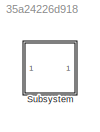
MODEL slx_35a24226d918
KIND model
CONFIG AbsTol = auto
CONFIG EnableMultiTasking = off
CONFIG FixedStep = auto
CONFIG MaxStep = auto
CONFIG MinStep = auto
CONFIG RelTol = 1e-3
CONFIG SampleTimeConstraint = Unconstrained
CONFIG SolverName = VariableStepAuto
CONFIG StartTime = 0.0
CONFIG StopTime = 10.0
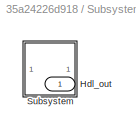
BLOCK [SubSystem] Subsystem
BLOCK [Outport] Subsystem/Hdl_out
  OutDataTypeStr = uint8
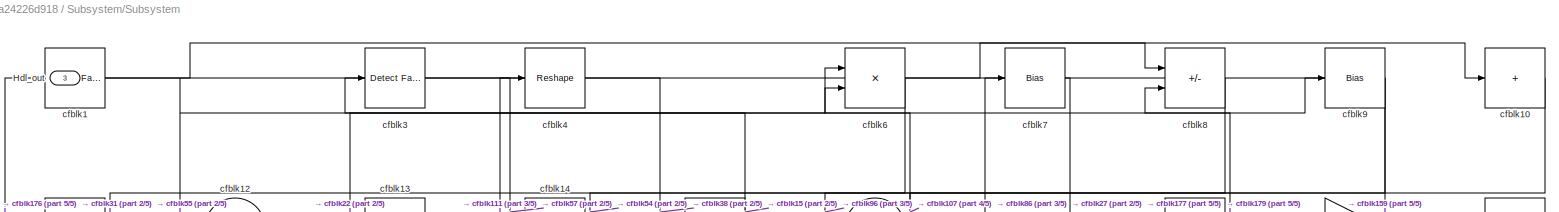
[diagram: Subsystem/Subsystem - part 1/5, full width, top band]
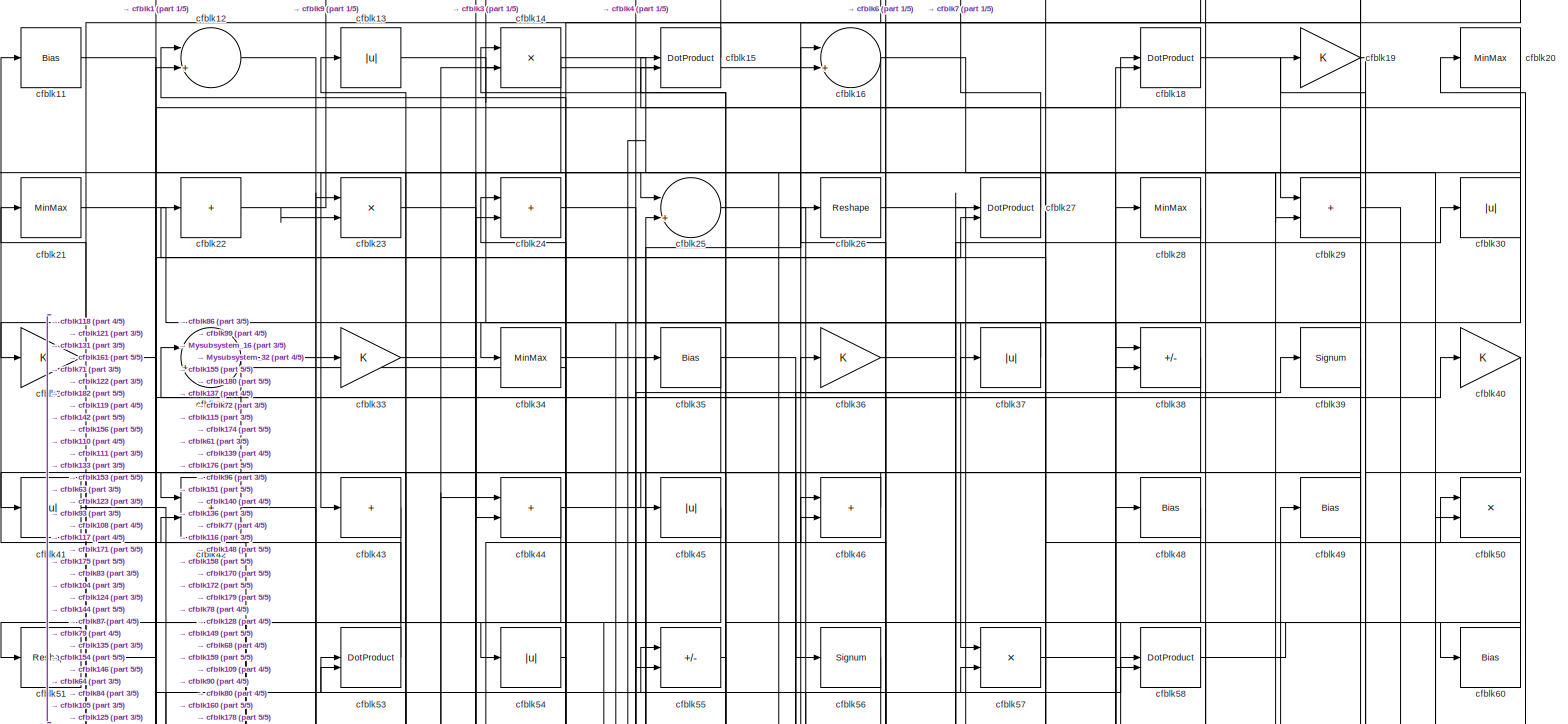
[diagram: Subsystem/Subsystem - part 2/5, full width, top band]
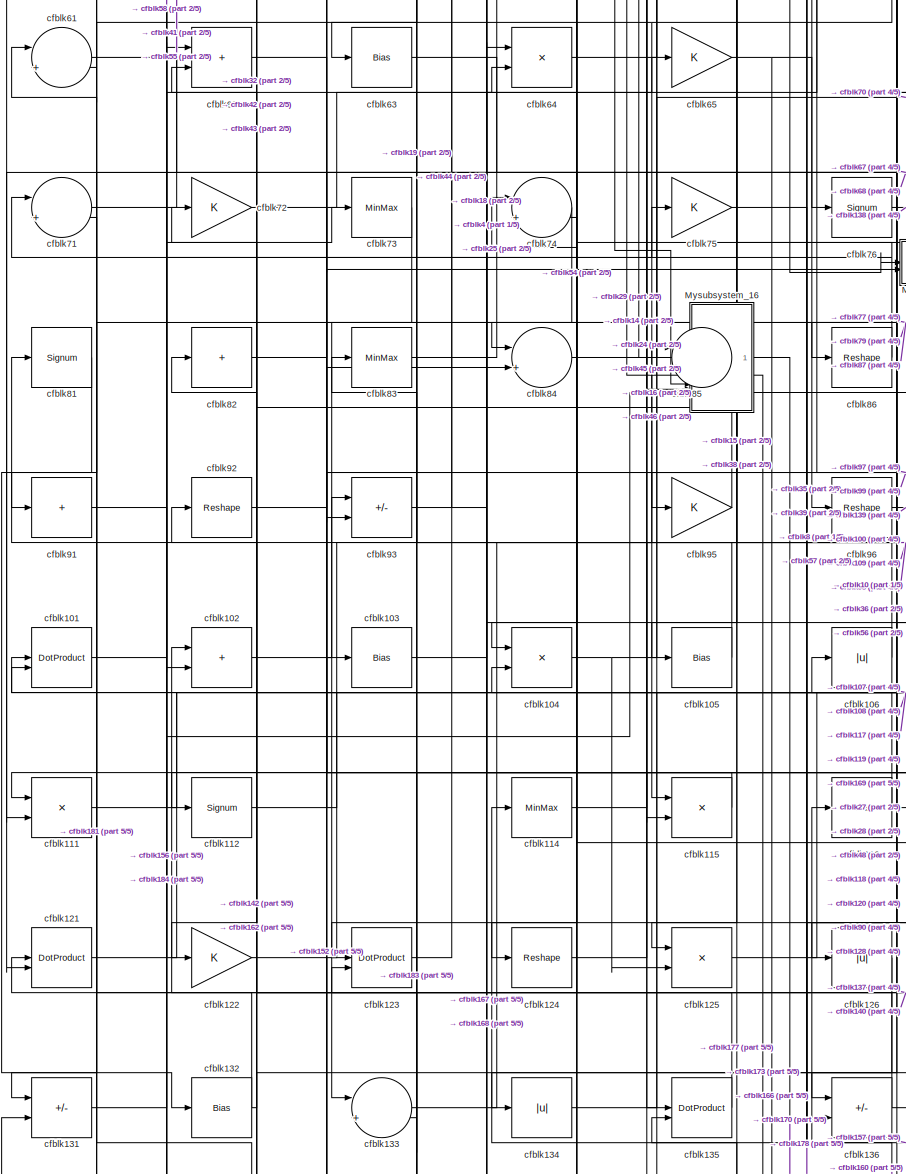
[diagram: Subsystem/Subsystem - part 3/5, middle left region]
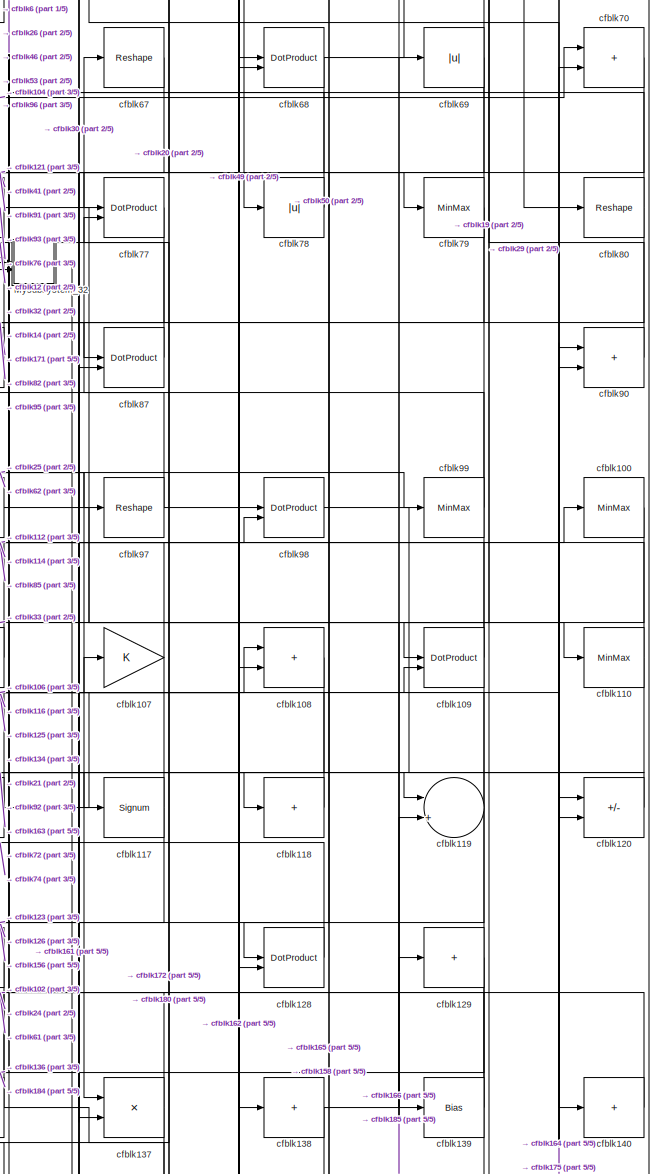
[diagram: Subsystem/Subsystem - part 4/5, middle right region]
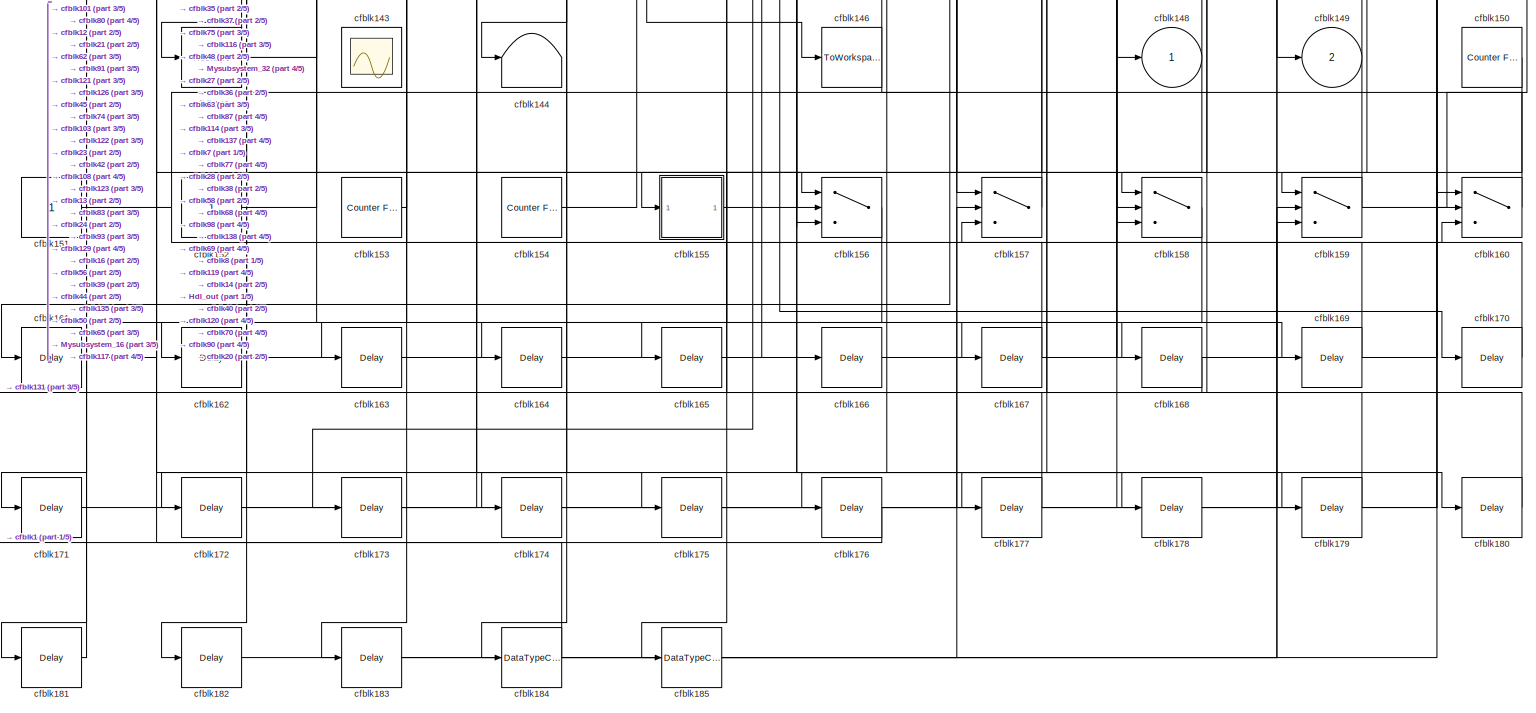
[diagram: Subsystem/Subsystem - part 5/5, full width, bottom band]
BLOCK [SubSystem] Subsystem/Subsystem
BLOCK [Outport] Subsystem/Subsystem/Hdl_out
  OutDataTypeStr = uint8
  Port = 3
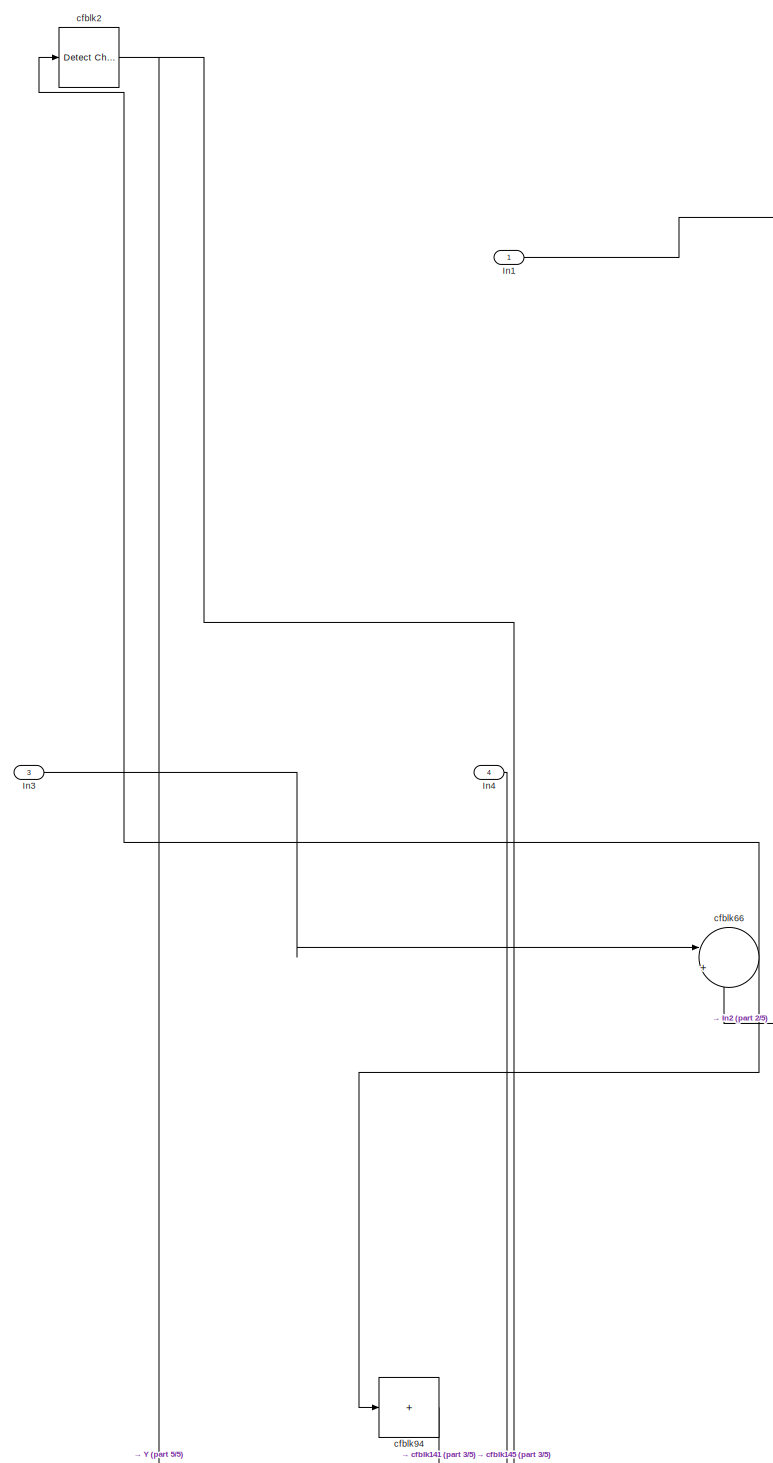
[diagram: Subsystem/Subsystem/Mysubsystem_16 - part 1/5, top center region]
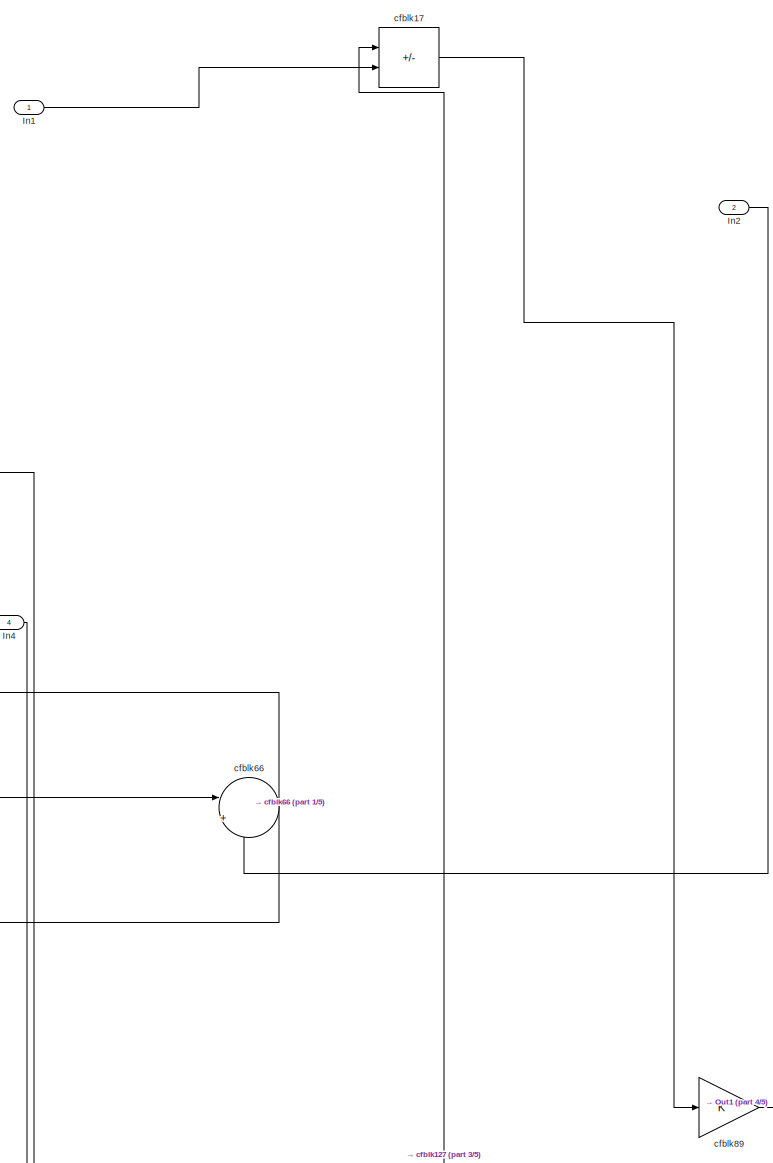
[diagram: Subsystem/Subsystem/Mysubsystem_16 - part 2/5, top center region]
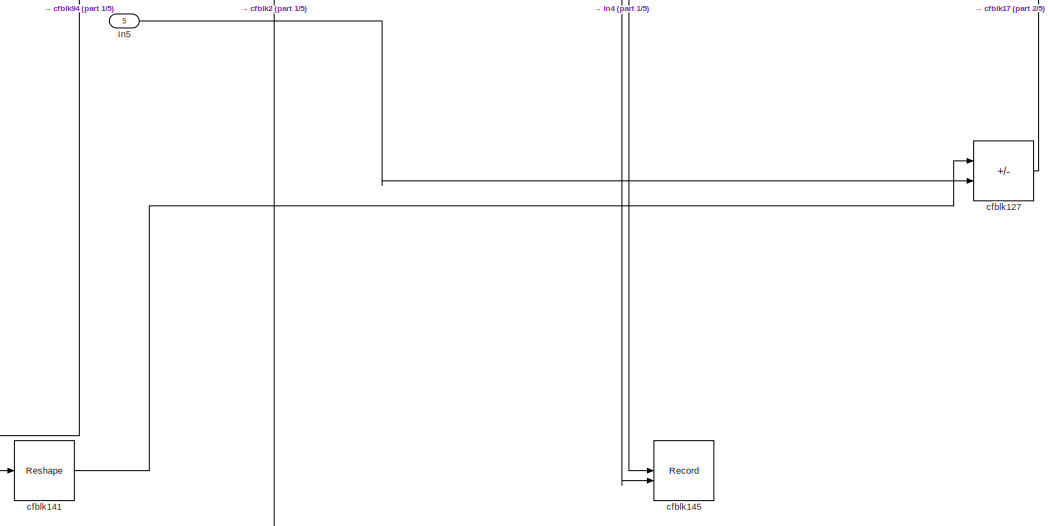
[diagram: Subsystem/Subsystem/Mysubsystem_16 - part 3/5, bottom center region]
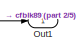
[diagram: Subsystem/Subsystem/Mysubsystem_16 - part 4/5, bottom right region]
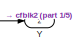
[diagram: Subsystem/Subsystem/Mysubsystem_16 - part 5/5, bottom left region]
BLOCK [SubSystem] Subsystem/Subsystem/Mysubsystem_16
  RTWFcnName = Mysubsystem_16
  RTWFcnNameOpts = User specified
  RTWFileNameOpts = Use function name
  RTWSystemCode = Reusable function
  TreatAsAtomicUnit = on
BLOCK [Inport] Subsystem/Subsystem/Mysubsystem_16/In1
BLOCK [Inport] Subsystem/Subsystem/Mysubsystem_16/In2
  Port = 2
BLOCK [Inport] Subsystem/Subsystem/Mysubsystem_16/In3
  Port = 3
BLOCK [Inport] Subsystem/Subsystem/Mysubsystem_16/In4
  Port = 4
BLOCK [Inport] Subsystem/Subsystem/Mysubsystem_16/In5
  Port = 5
BLOCK [Outport] Subsystem/Subsystem/Mysubsystem_16/Out1
BLOCK [Outport] Subsystem/Subsystem/Mysubsystem_16/Y
  Port = 2
BLOCK [Sum] Subsystem/Subsystem/Mysubsystem_16/cfblk127
  IconShape = rectangular
  Inputs = +-
BLOCK [Reshape] Subsystem/Subsystem/Mysubsystem_16/cfblk141
BLOCK [Record] Subsystem/Subsystem/Mysubsystem_16/cfblk145
  CompatibilityTag = XY
  FileSettingsInternal = {"entries":[{"content":{"excelSettings":{"content":{},"type":"Streamout.ExcelSettings"}},"type":"Streamout.FileSettingStorage","uuid":""}],"packageUris":["http:\/\/schema.mathworks.com\/mf0\/streamout_blocks\/R2020a"],"version":"1.0"}
  Layout = [1 1]
  SignalsInternal = {"entries":[{"content":{},"type":"RecordBlkView.InputSignals","uuid":""}],"packageUris":["http:\/\/schema.mathworks.com\/mf0\/streamout_blocks\/R2020a"],"version":"1.0"}
  VisualizationBindings = {"xyplotplugin":{"info":[{"series":[],"subplotID":1}]}}
  st = -1
BLOCK [Sum] Subsystem/Subsystem/Mysubsystem_16/cfblk17
  IconShape = rectangular
  Inputs = +-
BLOCK [Reference] Subsystem/Subsystem/Mysubsystem_16/cfblk2  REF=simulink/Logic and Bit
Operations/Detect
Change
  LibrarySourceBlock = hdlsllib/Logic and Bit\nOperations/Detect\nChange
  SourceBlock = simulink/Logic and Bit\nOperations/Detect\nChange
  SourceType = Detect Change
BLOCK [Sum] Subsystem/Subsystem/Mysubsystem_16/cfblk66
  Inputs = |++
BLOCK [Gain] Subsystem/Subsystem/Mysubsystem_16/cfblk89
BLOCK [Sum] Subsystem/Subsystem/Mysubsystem_16/cfblk94
  IconShape = rectangular
  Inputs = +
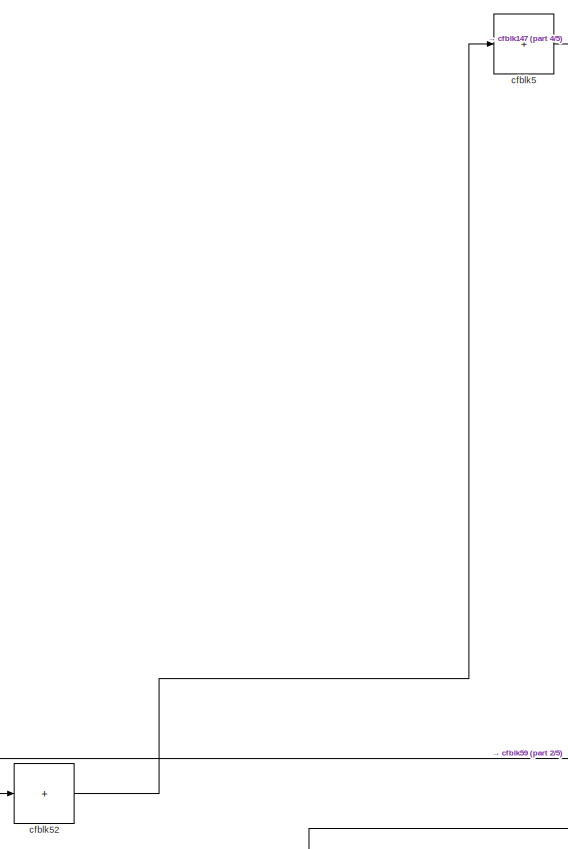
[diagram: Subsystem/Subsystem/Mysubsystem_32 - part 1/5, top left region]
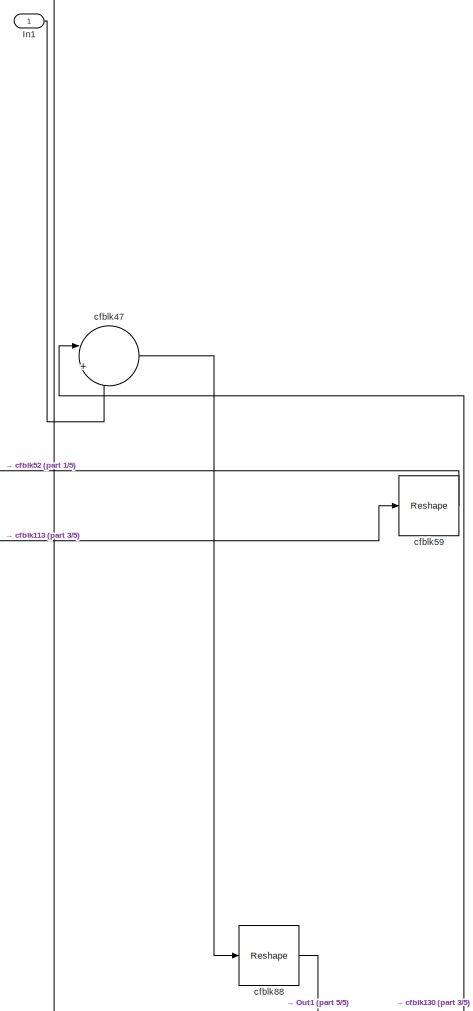
[diagram: Subsystem/Subsystem/Mysubsystem_32 - part 2/5, top right region]
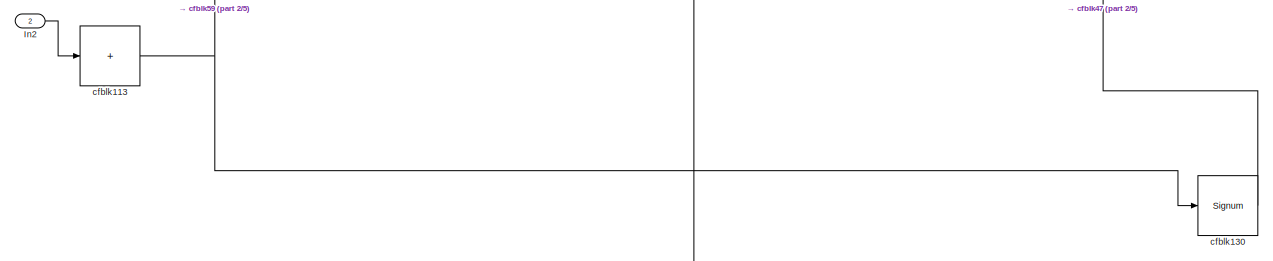
[diagram: Subsystem/Subsystem/Mysubsystem_32 - part 3/5, full width, bottom band]
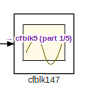
[diagram: Subsystem/Subsystem/Mysubsystem_32 - part 4/5, bottom center region]
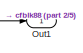
[diagram: Subsystem/Subsystem/Mysubsystem_32 - part 5/5, bottom left region]
BLOCK [SubSystem] Subsystem/Subsystem/Mysubsystem_32
  RTWFcnName = Mysubsystem_32
  RTWFcnNameOpts = User specified
  RTWFileNameOpts = Use function name
  RTWSystemCode = Reusable function
  TreatAsAtomicUnit = on
BLOCK [Inport] Subsystem/Subsystem/Mysubsystem_32/In1
BLOCK [Inport] Subsystem/Subsystem/Mysubsystem_32/In2
  Port = 2
BLOCK [Outport] Subsystem/Subsystem/Mysubsystem_32/Out1
BLOCK [Sum] Subsystem/Subsystem/Mysubsystem_32/cfblk113
  IconShape = rectangular
  Inputs = +
BLOCK [Signum] Subsystem/Subsystem/Mysubsystem_32/cfblk130
BLOCK [Scope] Subsystem/Subsystem/Mysubsystem_32/cfblk147
  Floating = off
  NumInputPorts = 1
  ScopeSpecificationString = Simulink.scopes.TimeScopeBlockCfg('CurrentConfiguration', extmgr.ConfigurationSet(extmgr.Configuration('Core','General UI',true),extmgr.Configuration('Core','Source UI',true),extmgr.Configuration('Sources','WiredSimulink',true,'DataLoggingVariableName','ScopeData2','DataLoggingSaveFormat','Array','DataLoggingLimitDataPoints',true,'DataLoggingDecimation','1'),extmgr.Configuration('Visuals','Time Do...<+868ch>
BLOCK [Sum] Subsystem/Subsystem/Mysubsystem_32/cfblk47
  Inputs = |++
BLOCK [Sum] Subsystem/Subsystem/Mysubsystem_32/cfblk5
  IconShape = rectangular
  Inputs = +
BLOCK [Sum] Subsystem/Subsystem/Mysubsystem_32/cfblk52
  IconShape = rectangular
  Inputs = +
BLOCK [Reshape] Subsystem/Subsystem/Mysubsystem_32/cfblk59
BLOCK [Reshape] Subsystem/Subsystem/Mysubsystem_32/cfblk88
BLOCK [Reference] Subsystem/Subsystem/cfblk1  REF=hdlsllib/Logic and Bit
Operations/Detect Fall
Negative
  SourceBlock = hdlsllib/Logic and Bit\nOperations/Detect Fall\nNegative
  SourceType = Detect Fall Negative
BLOCK [Sum] Subsystem/Subsystem/cfblk10
  IconShape = rectangular
  Inputs = +
  OutDataTypeStr = uint8
BLOCK [MinMax] Subsystem/Subsystem/cfblk100
  OutDataTypeStr = uint8
BLOCK [DotProduct] Subsystem/Subsystem/cfblk101
  OutDataTypeStr = uint8
BLOCK [Sum] Subsystem/Subsystem/cfblk102
  IconShape = rectangular
  OutDataTypeStr = uint8
BLOCK [Bias] Subsystem/Subsystem/cfblk103
  Bias = 0.0
  SaturateOnIntegerOverflow = off
BLOCK [Product] Subsystem/Subsystem/cfblk104
  Inputs = */
  OutDataTypeStr = uint8
  RndMeth = Zero
  SaturateOnIntegerOverflow = on
BLOCK [Bias] Subsystem/Subsystem/cfblk105
  Bias = 0.0
  SaturateOnIntegerOverflow = off
BLOCK [Abs] Subsystem/Subsystem/cfblk106
  OutDataTypeStr = uint8
  SaturateOnIntegerOverflow = off
BLOCK [Gain] Subsystem/Subsystem/cfblk107
  OutDataTypeStr = uint8
BLOCK [Sum] Subsystem/Subsystem/cfblk108
  IconShape = rectangular
  OutDataTypeStr = uint8
BLOCK [DotProduct] Subsystem/Subsystem/cfblk109
  OutDataTypeStr = uint8
BLOCK [Bias] Subsystem/Subsystem/cfblk11
  Bias = 0.0
  SaturateOnIntegerOverflow = off
BLOCK [MinMax] Subsystem/Subsystem/cfblk110
  OutDataTypeStr = uint8
BLOCK [Product] Subsystem/Subsystem/cfblk111
  Inputs = */
  OutDataTypeStr = uint8
  RndMeth = Zero
  SaturateOnIntegerOverflow = on
BLOCK [Signum] Subsystem/Subsystem/cfblk112
BLOCK [MinMax] Subsystem/Subsystem/cfblk114
  OutDataTypeStr = uint8
BLOCK [Product] Subsystem/Subsystem/cfblk115
  Inputs = */
  OutDataTypeStr = uint8
  RndMeth = Zero
  SaturateOnIntegerOverflow = on
BLOCK [Bias] Subsystem/Subsystem/cfblk116
  Bias = 0.0
  SaturateOnIntegerOverflow = off
BLOCK [Signum] Subsystem/Subsystem/cfblk117
BLOCK [Sum] Subsystem/Subsystem/cfblk118
  IconShape = rectangular
  Inputs = +
  OutDataTypeStr = uint8
BLOCK [Sum] Subsystem/Subsystem/cfblk119
  Inputs = |++
  OutDataTypeStr = uint8
BLOCK [Sum] Subsystem/Subsystem/cfblk12
  Inputs = |++
  OutDataTypeStr = uint8
BLOCK [Sum] Subsystem/Subsystem/cfblk120
  IconShape = rectangular
  Inputs = +-
  OutDataTypeStr = uint8
BLOCK [DotProduct] Subsystem/Subsystem/cfblk121
  OutDataTypeStr = uint8
BLOCK [Gain] Subsystem/Subsystem/cfblk122
  OutDataTypeStr = uint8
BLOCK [DotProduct] Subsystem/Subsystem/cfblk123
  OutDataTypeStr = uint8
BLOCK [Reshape] Subsystem/Subsystem/cfblk124
BLOCK [Product] Subsystem/Subsystem/cfblk125
  Inputs = */
  OutDataTypeStr = uint8
  RndMeth = Zero
  SaturateOnIntegerOverflow = on
BLOCK [Abs] Subsystem/Subsystem/cfblk126
  OutDataTypeStr = uint8
  SaturateOnIntegerOverflow = off
BLOCK [DotProduct] Subsystem/Subsystem/cfblk128
  OutDataTypeStr = uint8
BLOCK [Sum] Subsystem/Subsystem/cfblk129
  IconShape = rectangular
  Inputs = +
  OutDataTypeStr = uint8
BLOCK [Abs] Subsystem/Subsystem/cfblk13
  OutDataTypeStr = uint8
  SaturateOnIntegerOverflow = off
BLOCK [Sum] Subsystem/Subsystem/cfblk131
  IconShape = rectangular
  Inputs = +-
  OutDataTypeStr = uint8
BLOCK [Bias] Subsystem/Subsystem/cfblk132
  Bias = 0.0
  SaturateOnIntegerOverflow = off
BLOCK [Sum] Subsystem/Subsystem/cfblk133
  Inputs = |++
  OutDataTypeStr = uint8
BLOCK [Abs] Subsystem/Subsystem/cfblk134
  OutDataTypeStr = uint8
  SaturateOnIntegerOverflow = off
BLOCK [DotProduct] Subsystem/Subsystem/cfblk135
  OutDataTypeStr = uint8
BLOCK [Sum] Subsystem/Subsystem/cfblk136
  IconShape = rectangular
  Inputs = +-
  OutDataTypeStr = uint8
BLOCK [Product] Subsystem/Subsystem/cfblk137
  Inputs = */
  OutDataTypeStr = uint8
  RndMeth = Zero
  SaturateOnIntegerOverflow = on
BLOCK [Sum] Subsystem/Subsystem/cfblk138
  IconShape = rectangular
  Inputs = +
  OutDataTypeStr = uint8
BLOCK [Bias] Subsystem/Subsystem/cfblk139
  Bias = 0.0
  SaturateOnIntegerOverflow = off
BLOCK [Product] Subsystem/Subsystem/cfblk14
  Inputs = */
  OutDataTypeStr = uint8
  RndMeth = Zero
  SaturateOnIntegerOverflow = on
BLOCK [Sum] Subsystem/Subsystem/cfblk140
  IconShape = rectangular
  Inputs = +
  OutDataTypeStr = uint8
BLOCK [Reshape] Subsystem/Subsystem/cfblk142
BLOCK [Scope] Subsystem/Subsystem/cfblk143
  Floating = on
  NumInputPorts = 1
  ScopeSpecificationString = Simulink.scopes.TimeScopeBlockCfg('CurrentConfiguration', extmgr.ConfigurationSet(extmgr.Configuration('Core','General UI',true,'FigureColor',[0.156862745098039 0.156862745098039 0.156862745098039]),extmgr.Configuration('Core','Source UI',true),extmgr.Configuration('Sources','WiredSimulink',true,'DataLoggingVariableName','ScopeData1','DataLoggingSaveFormat','StructureWithTime','DataLoggingLimitDat...<+2713ch>
BLOCK [Terminator] Subsystem/Subsystem/cfblk144
BLOCK [ToWorkspace] Subsystem/Subsystem/cfblk146
  MaxDataPoints = inf
  SampleTime = -1
  SaveFormat = Timeseries
  VariableName = simout
BLOCK [Outport] Subsystem/Subsystem/cfblk148
  OutDataTypeStr = uint8
  VectorParamsAs1DForOutWhenUnconnected = off
BLOCK [Outport] Subsystem/Subsystem/cfblk149
  OutDataTypeStr = uint8
  Port = 2
  VectorParamsAs1DForOutWhenUnconnected = off
BLOCK [DotProduct] Subsystem/Subsystem/cfblk15
  OutDataTypeStr = uint8
BLOCK [Reference] Subsystem/Subsystem/cfblk150  REF=hdlsllib/Sources/Counter
Free-Running
  SourceBlock = hdlsllib/Sources/Counter\nFree-Running
  SourceType = Counter Free-Running
BLOCK [Constant] Subsystem/Subsystem/cfblk151
  OutDataTypeStr = uint8
  SampleTime = -1
BLOCK [Constant] Subsystem/Subsystem/cfblk152
  OutDataTypeStr = uint8
  SampleTime = -1
BLOCK [Reference] Subsystem/Subsystem/cfblk153  REF=hdlsllib/Sources/Counter
Free-Running
  SourceBlock = hdlsllib/Sources/Counter\nFree-Running
  SourceType = Counter Free-Running
BLOCK [Reference] Subsystem/Subsystem/cfblk154  REF=hdlsllib/Sources/Counter
Free-Running
  SourceBlock = hdlsllib/Sources/Counter\nFree-Running
  SourceType = Counter Free-Running
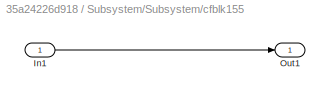
BLOCK [SubSystem] Subsystem/Subsystem/cfblk155
  LibrarySourceBlock = hdlsllib/Ports &\nSubsystems/Subsystem
BLOCK [Inport] Subsystem/Subsystem/cfblk155/In1
BLOCK [Outport] Subsystem/Subsystem/cfblk155/Out1
BLOCK [Switch] Subsystem/Subsystem/cfblk156
  InputSameDT = off
  OutDataTypeStr = uint8
  SaturateOnIntegerOverflow = off
BLOCK [Switch] Subsystem/Subsystem/cfblk157
  InputSameDT = off
  OutDataTypeStr = uint8
  SaturateOnIntegerOverflow = off
BLOCK [Switch] Subsystem/Subsystem/cfblk158
  InputSameDT = off
  OutDataTypeStr = uint8
  SaturateOnIntegerOverflow = off
BLOCK [Switch] Subsystem/Subsystem/cfblk159
  InputSameDT = off
  OutDataTypeStr = uint8
  SaturateOnIntegerOverflow = off
BLOCK [Sum] Subsystem/Subsystem/cfblk16
  Inputs = |++
  OutDataTypeStr = uint8
BLOCK [Switch] Subsystem/Subsystem/cfblk160
  InputSameDT = off
  OutDataTypeStr = uint8
  SaturateOnIntegerOverflow = off
BLOCK [Delay] Subsystem/Subsystem/cfblk161
  InputPortMap = u0
  SampleTime = 1
BLOCK [Delay] Subsystem/Subsystem/cfblk162
  InputPortMap = u0
  SampleTime = 1
BLOCK [Delay] Subsystem/Subsystem/cfblk163
  InputPortMap = u0
  SampleTime = 1
BLOCK [Delay] Subsystem/Subsystem/cfblk164
  InputPortMap = u0
  SampleTime = 1
BLOCK [Delay] Subsystem/Subsystem/cfblk165
  InputPortMap = u0
  SampleTime = 1
BLOCK [Delay] Subsystem/Subsystem/cfblk166
  InputPortMap = u0
  SampleTime = 1
BLOCK [Delay] Subsystem/Subsystem/cfblk167
  InputPortMap = u0
  SampleTime = 1
BLOCK [Delay] Subsystem/Subsystem/cfblk168
  InputPortMap = u0
  SampleTime = 1
BLOCK [Delay] Subsystem/Subsystem/cfblk169
  InputPortMap = u0
  SampleTime = 1
BLOCK [Delay] Subsystem/Subsystem/cfblk170
  InputPortMap = u0
  SampleTime = 1
BLOCK [Delay] Subsystem/Subsystem/cfblk171
  InputPortMap = u0
  SampleTime = 1
BLOCK [Delay] Subsystem/Subsystem/cfblk172
  InputPortMap = u0
  SampleTime = 1
BLOCK [Delay] Subsystem/Subsystem/cfblk173
  InputPortMap = u0
  SampleTime = 1
BLOCK [Delay] Subsystem/Subsystem/cfblk174
  InputPortMap = u0
  SampleTime = 1
BLOCK [Delay] Subsystem/Subsystem/cfblk175
  InputPortMap = u0
  SampleTime = 1
BLOCK [Delay] Subsystem/Subsystem/cfblk176
  InputPortMap = u0
  SampleTime = 1
BLOCK [Delay] Subsystem/Subsystem/cfblk177
  InputPortMap = u0
  SampleTime = 1
BLOCK [Delay] Subsystem/Subsystem/cfblk178
  InputPortMap = u0
  SampleTime = 1
BLOCK [Delay] Subsystem/Subsystem/cfblk179
  InputPortMap = u0
  SampleTime = 1
BLOCK [DotProduct] Subsystem/Subsystem/cfblk18
  OutDataTypeStr = uint8
BLOCK [Delay] Subsystem/Subsystem/cfblk180
  InputPortMap = u0
  SampleTime = 1
BLOCK [Delay] Subsystem/Subsystem/cfblk181
  InputPortMap = u0
  SampleTime = 1
BLOCK [Delay] Subsystem/Subsystem/cfblk182
  InputPortMap = u0
  SampleTime = 1
BLOCK [Delay] Subsystem/Subsystem/cfblk183
  InputPortMap = u0
  SampleTime = 1
BLOCK [DataTypeConversion] Subsystem/Subsystem/cfblk184
  OutDataTypeStr = uint8
  RndMeth = Floor
  SaturateOnIntegerOverflow = off
BLOCK [DataTypeConversion] Subsystem/Subsystem/cfblk185
  OutDataTypeStr = uint8
  RndMeth = Floor
  SaturateOnIntegerOverflow = off
BLOCK [Gain] Subsystem/Subsystem/cfblk19
  OutDataTypeStr = uint8
BLOCK [MinMax] Subsystem/Subsystem/cfblk20
  OutDataTypeStr = uint8
BLOCK [MinMax] Subsystem/Subsystem/cfblk21
  OutDataTypeStr = uint8
BLOCK [Sum] Subsystem/Subsystem/cfblk22
  IconShape = rectangular
  Inputs = +
  OutDataTypeStr = uint8
BLOCK [Product] Subsystem/Subsystem/cfblk23
  Inputs = */
  OutDataTypeStr = uint8
  RndMeth = Zero
  SaturateOnIntegerOverflow = on
BLOCK [Sum] Subsystem/Subsystem/cfblk24
  IconShape = rectangular
  OutDataTypeStr = uint8
BLOCK [Sum] Subsystem/Subsystem/cfblk25
  Inputs = |++
  OutDataTypeStr = uint8
BLOCK [Reshape] Subsystem/Subsystem/cfblk26
BLOCK [DotProduct] Subsystem/Subsystem/cfblk27
  OutDataTypeStr = uint8
BLOCK [MinMax] Subsystem/Subsystem/cfblk28
  OutDataTypeStr = uint8
BLOCK [Sum] Subsystem/Subsystem/cfblk29
  IconShape = rectangular
  OutDataTypeStr = uint8
BLOCK [Reference] Subsystem/Subsystem/cfblk3  REF=hdlsllib/Logic and Bit
Operations/Detect Fall
Nonpositive
  SourceBlock = hdlsllib/Logic and Bit\nOperations/Detect Fall\nNonpositive
  SourceType = Detect Fall Nonpositive
BLOCK [Abs] Subsystem/Subsystem/cfblk30
  OutDataTypeStr = uint8
  SaturateOnIntegerOverflow = off
BLOCK [Gain] Subsystem/Subsystem/cfblk31
  OutDataTypeStr = uint8
BLOCK [Sum] Subsystem/Subsystem/cfblk32
  Inputs = |++
  OutDataTypeStr = uint8
BLOCK [Gain] Subsystem/Subsystem/cfblk33
  OutDataTypeStr = uint8
BLOCK [MinMax] Subsystem/Subsystem/cfblk34
  OutDataTypeStr = uint8
BLOCK [Bias] Subsystem/Subsystem/cfblk35
  Bias = 0.0
  SaturateOnIntegerOverflow = off
BLOCK [Gain] Subsystem/Subsystem/cfblk36
  OutDataTypeStr = uint8
BLOCK [Abs] Subsystem/Subsystem/cfblk37
  OutDataTypeStr = uint8
  SaturateOnIntegerOverflow = off
BLOCK [Sum] Subsystem/Subsystem/cfblk38
  IconShape = rectangular
  Inputs = +-
  OutDataTypeStr = uint8
BLOCK [Signum] Subsystem/Subsystem/cfblk39
BLOCK [Reshape] Subsystem/Subsystem/cfblk4
BLOCK [Gain] Subsystem/Subsystem/cfblk40
  OutDataTypeStr = uint8
BLOCK [Abs] Subsystem/Subsystem/cfblk41
  OutDataTypeStr = uint8
  SaturateOnIntegerOverflow = off
BLOCK [Sum] Subsystem/Subsystem/cfblk42
  IconShape = rectangular
  OutDataTypeStr = uint8
BLOCK [Sum] Subsystem/Subsystem/cfblk43
  IconShape = rectangular
  Inputs = +
  OutDataTypeStr = uint8
BLOCK [Sum] Subsystem/Subsystem/cfblk44
  IconShape = rectangular
  OutDataTypeStr = uint8
BLOCK [Abs] Subsystem/Subsystem/cfblk45
  OutDataTypeStr = uint8
  SaturateOnIntegerOverflow = off
BLOCK [Sum] Subsystem/Subsystem/cfblk46
  IconShape = rectangular
  OutDataTypeStr = uint8
BLOCK [Bias] Subsystem/Subsystem/cfblk48
  Bias = 0.0
  SaturateOnIntegerOverflow = off
BLOCK [Bias] Subsystem/Subsystem/cfblk49
  Bias = 0.0
  SaturateOnIntegerOverflow = off
BLOCK [Product] Subsystem/Subsystem/cfblk50
  Inputs = */
  OutDataTypeStr = uint8
  RndMeth = Zero
  SaturateOnIntegerOverflow = on
BLOCK [Reshape] Subsystem/Subsystem/cfblk51
BLOCK [DotProduct] Subsystem/Subsystem/cfblk53
  OutDataTypeStr = uint8
BLOCK [Abs] Subsystem/Subsystem/cfblk54
  OutDataTypeStr = uint8
  SaturateOnIntegerOverflow = off
BLOCK [Sum] Subsystem/Subsystem/cfblk55
  IconShape = rectangular
  Inputs = +-
  OutDataTypeStr = uint8
BLOCK [Signum] Subsystem/Subsystem/cfblk56
BLOCK [Product] Subsystem/Subsystem/cfblk57
  Inputs = */
  OutDataTypeStr = uint8
  RndMeth = Zero
  SaturateOnIntegerOverflow = on
BLOCK [DotProduct] Subsystem/Subsystem/cfblk58
  OutDataTypeStr = uint8
BLOCK [Product] Subsystem/Subsystem/cfblk6
  Inputs = */
  OutDataTypeStr = uint8
  RndMeth = Zero
  SaturateOnIntegerOverflow = on
BLOCK [Bias] Subsystem/Subsystem/cfblk60
  Bias = 0.0
  SaturateOnIntegerOverflow = off
BLOCK [Sum] Subsystem/Subsystem/cfblk61
  Inputs = |++
  OutDataTypeStr = uint8
BLOCK [Sum] Subsystem/Subsystem/cfblk62
  IconShape = rectangular
  OutDataTypeStr = uint8
BLOCK [Bias] Subsystem/Subsystem/cfblk63
  Bias = 0.0
  SaturateOnIntegerOverflow = off
BLOCK [Product] Subsystem/Subsystem/cfblk64
  Inputs = */
  OutDataTypeStr = uint8
  RndMeth = Zero
  SaturateOnIntegerOverflow = on
BLOCK [Gain] Subsystem/Subsystem/cfblk65
  OutDataTypeStr = uint8
BLOCK [Reshape] Subsystem/Subsystem/cfblk67
BLOCK [DotProduct] Subsystem/Subsystem/cfblk68
  OutDataTypeStr = uint8
BLOCK [Abs] Subsystem/Subsystem/cfblk69
  OutDataTypeStr = uint8
  SaturateOnIntegerOverflow = off
BLOCK [Bias] Subsystem/Subsystem/cfblk7
  Bias = 0.0
  SaturateOnIntegerOverflow = off
BLOCK [Sum] Subsystem/Subsystem/cfblk70
  IconShape = rectangular
  OutDataTypeStr = uint8
BLOCK [Sum] Subsystem/Subsystem/cfblk71
  Inputs = |++
  OutDataTypeStr = uint8
BLOCK [Gain] Subsystem/Subsystem/cfblk72
  OutDataTypeStr = uint8
BLOCK [MinMax] Subsystem/Subsystem/cfblk73
  OutDataTypeStr = uint8
BLOCK [Sum] Subsystem/Subsystem/cfblk74
  Inputs = |++
  OutDataTypeStr = uint8
BLOCK [Gain] Subsystem/Subsystem/cfblk75
  OutDataTypeStr = uint8
BLOCK [Signum] Subsystem/Subsystem/cfblk76
BLOCK [DotProduct] Subsystem/Subsystem/cfblk77
  OutDataTypeStr = uint8
BLOCK [Abs] Subsystem/Subsystem/cfblk78
  OutDataTypeStr = uint8
  SaturateOnIntegerOverflow = off
BLOCK [MinMax] Subsystem/Subsystem/cfblk79
  OutDataTypeStr = uint8
BLOCK [Sum] Subsystem/Subsystem/cfblk8
  IconShape = rectangular
  Inputs = +-
  OutDataTypeStr = uint8
BLOCK [Reshape] Subsystem/Subsystem/cfblk80
BLOCK [Signum] Subsystem/Subsystem/cfblk81
BLOCK [Sum] Subsystem/Subsystem/cfblk82
  IconShape = rectangular
  Inputs = +
  OutDataTypeStr = uint8
BLOCK [MinMax] Subsystem/Subsystem/cfblk83
  OutDataTypeStr = uint8
BLOCK [Sum] Subsystem/Subsystem/cfblk84
  Inputs = |++
  OutDataTypeStr = uint8
BLOCK [Sum] Subsystem/Subsystem/cfblk85
  Inputs = |++
  OutDataTypeStr = uint8
BLOCK [Reshape] Subsystem/Subsystem/cfblk86
BLOCK [DotProduct] Subsystem/Subsystem/cfblk87
  OutDataTypeStr = uint8
BLOCK [Bias] Subsystem/Subsystem/cfblk9
  Bias = 0.0
  SaturateOnIntegerOverflow = off
BLOCK [Sum] Subsystem/Subsystem/cfblk90
  IconShape = rectangular
  OutDataTypeStr = uint8
BLOCK [Sum] Subsystem/Subsystem/cfblk91
  IconShape = rectangular
  Inputs = +
  OutDataTypeStr = uint8
BLOCK [Reshape] Subsystem/Subsystem/cfblk92
BLOCK [Sum] Subsystem/Subsystem/cfblk93
  IconShape = rectangular
  Inputs = +-
  OutDataTypeStr = uint8
BLOCK [Gain] Subsystem/Subsystem/cfblk95
  OutDataTypeStr = uint8
BLOCK [Reshape] Subsystem/Subsystem/cfblk96
BLOCK [Reshape] Subsystem/Subsystem/cfblk97
BLOCK [DotProduct] Subsystem/Subsystem/cfblk98
  OutDataTypeStr = uint8
BLOCK [MinMax] Subsystem/Subsystem/cfblk99
  OutDataTypeStr = uint8
LINE Subsystem/Subsystem/Mysubsystem_16/In1:1 -> Subsystem/Subsystem/Mysubsystem_16/cfblk17:2
LINE Subsystem/Subsystem/Mysubsystem_16/In2:1 -> Subsystem/Subsystem/Mysubsystem_16/cfblk66:2
LINE Subsystem/Subsystem/Mysubsystem_16/In3:1 -> Subsystem/Subsystem/Mysubsystem_16/cfblk66:1
LINE Subsystem/Subsystem/Mysubsystem_16/In4:1 -> Subsystem/Subsystem/Mysubsystem_16/cfblk145:2
LINE Subsystem/Subsystem/Mysubsystem_16/In5:1 -> Subsystem/Subsystem/Mysubsystem_16/cfblk127:2
LINE Subsystem/Subsystem/Mysubsystem_16/cfblk127:1 -> Subsystem/Subsystem/Mysubsystem_16/cfblk17:1
LINE Subsystem/Subsystem/Mysubsystem_16/cfblk141:1 -> Subsystem/Subsystem/Mysubsystem_16/cfblk127:1
LINE Subsystem/Subsystem/Mysubsystem_16/cfblk17:1 -> Subsystem/Subsystem/Mysubsystem_16/cfblk89:1
NET Subsystem/Subsystem/Mysubsystem_16/cfblk2:1 -> Subsystem/Subsystem/Mysubsystem_16/Y:1, Subsystem/Subsystem/Mysubsystem_16/cfblk145:1
NET Subsystem/Subsystem/Mysubsystem_16/cfblk66:1 -> Subsystem/Subsystem/Mysubsystem_16/cfblk2:1, Subsystem/Subsystem/Mysubsystem_16/cfblk94:1
LINE Subsystem/Subsystem/Mysubsystem_16/cfblk89:1 -> Subsystem/Subsystem/Mysubsystem_16/Out1:1
LINE Subsystem/Subsystem/Mysubsystem_16/cfblk94:1 -> Subsystem/Subsystem/Mysubsystem_16/cfblk141:1
LINE Subsystem/Subsystem/Mysubsystem_16:1 -> Subsystem/Subsystem/cfblk170:1
LINE Subsystem/Subsystem/Mysubsystem_16:2 -> Subsystem/Subsystem/cfblk173:1
LINE Subsystem/Subsystem/Mysubsystem_32/In1:1 -> Subsystem/Subsystem/Mysubsystem_32/cfblk47:2
LINE Subsystem/Subsystem/Mysubsystem_32/In2:1 -> Subsystem/Subsystem/Mysubsystem_32/cfblk113:1
NET Subsystem/Subsystem/Mysubsystem_32/cfblk113:1 -> Subsystem/Subsystem/Mysubsystem_32/cfblk130:1, Subsystem/Subsystem/Mysubsystem_32/cfblk59:1
LINE Subsystem/Subsystem/Mysubsystem_32/cfblk130:1 -> Subsystem/Subsystem/Mysubsystem_32/cfblk47:1
LINE Subsystem/Subsystem/Mysubsystem_32/cfblk47:1 -> Subsystem/Subsystem/Mysubsystem_32/cfblk88:1
LINE Subsystem/Subsystem/Mysubsystem_32/cfblk52:1 -> Subsystem/Subsystem/Mysubsystem_32/cfblk5:1
LINE Subsystem/Subsystem/Mysubsystem_32/cfblk59:1 -> Subsystem/Subsystem/Mysubsystem_32/cfblk52:1
LINE Subsystem/Subsystem/Mysubsystem_32/cfblk5:1 -> Subsystem/Subsystem/Mysubsystem_32/cfblk147:1
LINE Subsystem/Subsystem/Mysubsystem_32/cfblk88:1 -> Subsystem/Subsystem/Mysubsystem_32/Out1:1
LINE Subsystem/Subsystem/Mysubsystem_32:1 -> Subsystem/Subsystem/cfblk161:1
LINE Subsystem/Subsystem/cfblk100:1 -> Subsystem/Subsystem/cfblk126:1
NET Subsystem/Subsystem/cfblk101:1 -> Subsystem/Subsystem/cfblk64:2, Subsystem/Subsystem/cfblk73:1
LINE Subsystem/Subsystem/cfblk102:1 -> Subsystem/Subsystem/cfblk93:1
LINE Subsystem/Subsystem/cfblk103:1 -> Subsystem/Subsystem/cfblk64:1
NET Subsystem/Subsystem/cfblk104:1 -> Subsystem/Subsystem/cfblk125:2, Subsystem/Subsystem/cfblk70:1
LINE Subsystem/Subsystem/cfblk105:1 -> Subsystem/Subsystem/cfblk83:1
LINE Subsystem/Subsystem/cfblk106:1 -> Subsystem/Subsystem/cfblk81:1
NET Subsystem/Subsystem/cfblk107:1 -> Subsystem/Subsystem/cfblk104:2, Subsystem/Subsystem/cfblk6:1
LINE Subsystem/Subsystem/cfblk108:1 -> Subsystem/Subsystem/cfblk163:1
LINE Subsystem/Subsystem/cfblk109:1 -> Subsystem/Subsystem/cfblk85:2
LINE Subsystem/Subsystem/cfblk10:1 -> Subsystem/Subsystem/cfblk86:1
NET Subsystem/Subsystem/cfblk110:1 -> Subsystem/Subsystem/cfblk128:2, Subsystem/Subsystem/cfblk53:1
NET Subsystem/Subsystem/cfblk111:1 -> Subsystem/Subsystem/Mysubsystem_16:5, Subsystem/Subsystem/cfblk18:1, Subsystem/Subsystem/cfblk4:1
NET Subsystem/Subsystem/cfblk112:1 -> Subsystem/Subsystem/cfblk100:1, Subsystem/Subsystem/cfblk84:2
LINE Subsystem/Subsystem/cfblk114:1 -> Subsystem/Subsystem/cfblk98:2
LINE Subsystem/Subsystem/cfblk115:1 -> Subsystem/Subsystem/cfblk111:1
NET Subsystem/Subsystem/cfblk116:1 -> Subsystem/Subsystem/cfblk18:2, Subsystem/Subsystem/cfblk71:2, Subsystem/Subsystem/cfblk90:2
NET Subsystem/Subsystem/cfblk117:1 -> Subsystem/Subsystem/cfblk156:3, Subsystem/Subsystem/cfblk92:1
LINE Subsystem/Subsystem/cfblk118:1 -> Subsystem/Subsystem/cfblk21:1
NET Subsystem/Subsystem/cfblk119:1 -> Subsystem/Subsystem/cfblk109:2, Subsystem/Subsystem/cfblk123:1, Subsystem/Subsystem/cfblk74:2
LINE Subsystem/Subsystem/cfblk11:1 -> Subsystem/Subsystem/cfblk25:1
LINE Subsystem/Subsystem/cfblk120:1 -> Subsystem/Subsystem/cfblk112:1
NET Subsystem/Subsystem/cfblk121:1 -> Subsystem/Subsystem/cfblk27:2, Subsystem/Subsystem/cfblk48:1, Subsystem/Subsystem/cfblk75:1
NET Subsystem/Subsystem/cfblk122:1 -> Subsystem/Subsystem/cfblk169:1, Subsystem/Subsystem/cfblk28:1
LINE Subsystem/Subsystem/cfblk123:1 -> Subsystem/Subsystem/cfblk44:1
LINE Subsystem/Subsystem/cfblk124:1 -> Subsystem/Subsystem/cfblk35:1
LINE Subsystem/Subsystem/cfblk125:1 -> Subsystem/Subsystem/cfblk108:1
LINE Subsystem/Subsystem/cfblk126:1 -> Subsystem/Subsystem/cfblk162:1
LINE Subsystem/Subsystem/cfblk128:1 -> Subsystem/Subsystem/cfblk74:1
LINE Subsystem/Subsystem/cfblk129:1 -> Subsystem/Subsystem/cfblk184:1
NET Subsystem/Subsystem/cfblk12:1 -> Subsystem/Subsystem/Mysubsystem_32:2, Subsystem/Subsystem/cfblk119:1
LINE Subsystem/Subsystem/cfblk131:1 -> Subsystem/Subsystem/cfblk58:1
NET Subsystem/Subsystem/cfblk132:1 -> Subsystem/Subsystem/cfblk101:1, Subsystem/Subsystem/cfblk62:2
LINE Subsystem/Subsystem/cfblk133:1 -> Subsystem/Subsystem/cfblk85:1
LINE Subsystem/Subsystem/cfblk134:1 -> Subsystem/Subsystem/cfblk107:1
LINE Subsystem/Subsystem/cfblk135:1 -> Subsystem/Subsystem/cfblk82:1
NET Subsystem/Subsystem/cfblk136:1 -> Subsystem/Subsystem/cfblk32:1, Subsystem/Subsystem/cfblk42:2
NET Subsystem/Subsystem/cfblk137:1 -> Subsystem/Subsystem/cfblk102:1, Subsystem/Subsystem/cfblk172:1
NET Subsystem/Subsystem/cfblk138:1 -> Subsystem/Subsystem/cfblk165:1, Subsystem/Subsystem/cfblk69:1
NET Subsystem/Subsystem/cfblk139:1 -> Subsystem/Subsystem/cfblk106:1, Subsystem/Subsystem/cfblk46:2
LINE Subsystem/Subsystem/cfblk13:1 -> Subsystem/Subsystem/cfblk16:2
NET Subsystem/Subsystem/cfblk140:1 -> Subsystem/Subsystem/cfblk24:1, Subsystem/Subsystem/cfblk61:1
NET Subsystem/Subsystem/cfblk142:1 -> Subsystem/Subsystem/cfblk121:1, Subsystem/Subsystem/cfblk23:1
NET Subsystem/Subsystem/cfblk14:1 -> Subsystem/Subsystem/Mysubsystem_16:1, Subsystem/Subsystem/Mysubsystem_32:1, Subsystem/Subsystem/cfblk149:1, Subsystem/Subsystem/cfblk43:1
LINE Subsystem/Subsystem/cfblk150:1 -> Subsystem/Subsystem/cfblk185:1
NET Subsystem/Subsystem/cfblk151:1 -> Subsystem/Subsystem/cfblk160:3, Subsystem/Subsystem/cfblk27:1
LINE Subsystem/Subsystem/cfblk152:1 -> Subsystem/Subsystem/cfblk103:1
LINE Subsystem/Subsystem/cfblk153:1 -> Subsystem/Subsystem/cfblk13:1
LINE Subsystem/Subsystem/cfblk154:1 -> Subsystem/Subsystem/cfblk39:1
LINE Subsystem/Subsystem/cfblk155/In1:1 -> Subsystem/Subsystem/cfblk155/Out1:1
LINE Subsystem/Subsystem/cfblk155:1 -> Subsystem/Subsystem/cfblk37:1
LINE Subsystem/Subsystem/cfblk156:1 -> Subsystem/Subsystem/cfblk181:1
LINE Subsystem/Subsystem/cfblk157:1 -> Subsystem/Subsystem/cfblk114:1
LINE Subsystem/Subsystem/cfblk158:1 -> Subsystem/Subsystem/cfblk164:1
NET Subsystem/Subsystem/cfblk159:1 -> Subsystem/Subsystem/Hdl_out:1, Subsystem/Subsystem/cfblk20:1
LINE Subsystem/Subsystem/cfblk15:1 -> Subsystem/Subsystem/cfblk3:1
LINE Subsystem/Subsystem/cfblk160:1 -> Subsystem/Subsystem/cfblk116:1
LINE Subsystem/Subsystem/cfblk161:1 -> Subsystem/Subsystem/cfblk12:2
LINE Subsystem/Subsystem/cfblk162:1 -> Subsystem/Subsystem/cfblk98:1
LINE Subsystem/Subsystem/cfblk163:1 -> Subsystem/Subsystem/cfblk68:1
LINE Subsystem/Subsystem/cfblk164:1 -> Subsystem/Subsystem/cfblk120:1
LINE Subsystem/Subsystem/cfblk165:1 -> Subsystem/Subsystem/cfblk70:2
LINE Subsystem/Subsystem/cfblk166:1 -> Subsystem/Subsystem/cfblk119:2
LINE Subsystem/Subsystem/cfblk167:1 -> Subsystem/Subsystem/cfblk123:2
LINE Subsystem/Subsystem/cfblk168:1 -> Subsystem/Subsystem/cfblk131:2
LINE Subsystem/Subsystem/cfblk169:1 -> Subsystem/Subsystem/cfblk157:3
NET Subsystem/Subsystem/cfblk16:1 -> Subsystem/Subsystem/cfblk144:1, Subsystem/Subsystem/cfblk160:2, Subsystem/Subsystem/cfblk44:2
LINE Subsystem/Subsystem/cfblk170:1 -> Subsystem/Subsystem/cfblk38:1
LINE Subsystem/Subsystem/cfblk171:1 -> Subsystem/Subsystem/cfblk24:2
LINE Subsystem/Subsystem/cfblk172:1 -> Subsystem/Subsystem/cfblk58:2
LINE Subsystem/Subsystem/cfblk173:1 -> Subsystem/Subsystem/cfblk157:2
LINE Subsystem/Subsystem/cfblk174:1 -> Subsystem/Subsystem/cfblk159:2
LINE Subsystem/Subsystem/cfblk175:1 -> Subsystem/Subsystem/cfblk90:1
LINE Subsystem/Subsystem/cfblk176:1 -> Subsystem/Subsystem/cfblk1:1
LINE Subsystem/Subsystem/cfblk177:1 -> Subsystem/Subsystem/cfblk135:2
LINE Subsystem/Subsystem/cfblk178:1 -> Subsystem/Subsystem/cfblk50:2
LINE Subsystem/Subsystem/cfblk179:1 -> Subsystem/Subsystem/cfblk8:2
LINE Subsystem/Subsystem/cfblk180:1 -> Subsystem/Subsystem/cfblk77:2
LINE Subsystem/Subsystem/cfblk181:1 -> Subsystem/Subsystem/cfblk101:2
LINE Subsystem/Subsystem/cfblk182:1 -> Subsystem/Subsystem/cfblk160:1
LINE Subsystem/Subsystem/cfblk183:1 -> Subsystem/Subsystem/cfblk159:3
NET Subsystem/Subsystem/cfblk184:1 -> Subsystem/Subsystem/cfblk62:1, Subsystem/Subsystem/cfblk87:2
LINE Subsystem/Subsystem/cfblk185:1 -> Subsystem/Subsystem/cfblk129:1
LINE Subsystem/Subsystem/cfblk18:1 -> Subsystem/Subsystem/cfblk29:1
NET Subsystem/Subsystem/cfblk19:1 -> Subsystem/Subsystem/cfblk109:1, Subsystem/Subsystem/cfblk111:2, Subsystem/Subsystem/cfblk133:2, Subsystem/Subsystem/cfblk68:2
NET Subsystem/Subsystem/cfblk1:1 -> Subsystem/Subsystem/cfblk55:2, Subsystem/Subsystem/cfblk6:2, Subsystem/Subsystem/cfblk8:1
NET Subsystem/Subsystem/cfblk20:1 -> Subsystem/Subsystem/cfblk29:2, Subsystem/Subsystem/cfblk77:1
NET Subsystem/Subsystem/cfblk21:1 -> Subsystem/Subsystem/cfblk148:1, Subsystem/Subsystem/cfblk179:1
NET Subsystem/Subsystem/cfblk22:1 -> Subsystem/Subsystem/cfblk23:2, Subsystem/Subsystem/cfblk9:1
LINE Subsystem/Subsystem/cfblk23:1 -> Subsystem/Subsystem/cfblk175:1
LINE Subsystem/Subsystem/cfblk24:1 -> Subsystem/Subsystem/cfblk135:1
LINE Subsystem/Subsystem/cfblk25:1 -> Subsystem/Subsystem/cfblk137:1
LINE Subsystem/Subsystem/cfblk26:1 -> Subsystem/Subsystem/cfblk140:1
LINE Subsystem/Subsystem/cfblk27:1 -> Subsystem/Subsystem/cfblk7:1
LINE Subsystem/Subsystem/cfblk28:1 -> Subsystem/Subsystem/cfblk158:2
NET Subsystem/Subsystem/cfblk29:1 -> Subsystem/Subsystem/Mysubsystem_16:2, Subsystem/Subsystem/cfblk80:1
NET Subsystem/Subsystem/cfblk30:1 -> Subsystem/Subsystem/cfblk137:2, Subsystem/Subsystem/cfblk15:2
LINE Subsystem/Subsystem/cfblk31:1 -> Subsystem/Subsystem/cfblk45:1
NET Subsystem/Subsystem/cfblk32:1 -> Subsystem/Subsystem/cfblk131:1, Subsystem/Subsystem/cfblk33:1
NET Subsystem/Subsystem/cfblk33:1 -> Subsystem/Subsystem/cfblk108:2, Subsystem/Subsystem/cfblk117:1
LINE Subsystem/Subsystem/cfblk34:1 -> Subsystem/Subsystem/cfblk56:1
NET Subsystem/Subsystem/cfblk35:1 -> Subsystem/Subsystem/cfblk180:1, Subsystem/Subsystem/cfblk63:1
NET Subsystem/Subsystem/cfblk36:1 -> Subsystem/Subsystem/cfblk158:3, Subsystem/Subsystem/cfblk30:1
LINE Subsystem/Subsystem/cfblk37:1 -> Subsystem/Subsystem/cfblk34:1
NET Subsystem/Subsystem/cfblk38:1 -> Subsystem/Subsystem/cfblk104:1, Subsystem/Subsystem/cfblk125:1
LINE Subsystem/Subsystem/cfblk39:1 -> Subsystem/Subsystem/cfblk136:2
LINE Subsystem/Subsystem/cfblk3:1 -> Subsystem/Subsystem/cfblk57:1
LINE Subsystem/Subsystem/cfblk40:1 -> Subsystem/Subsystem/cfblk159:1
NET Subsystem/Subsystem/cfblk41:1 -> Subsystem/Subsystem/Mysubsystem_16:3, Subsystem/Subsystem/cfblk79:1
LINE Subsystem/Subsystem/cfblk42:1 -> Subsystem/Subsystem/cfblk156:1
LINE Subsystem/Subsystem/cfblk43:1 -> Subsystem/Subsystem/cfblk122:1
NET Subsystem/Subsystem/cfblk44:1 -> Subsystem/Subsystem/cfblk146:1, Subsystem/Subsystem/cfblk51:1
NET Subsystem/Subsystem/cfblk45:1 -> Subsystem/Subsystem/Mysubsystem_16:4, Subsystem/Subsystem/cfblk182:1
LINE Subsystem/Subsystem/cfblk46:1 -> Subsystem/Subsystem/cfblk41:1
LINE Subsystem/Subsystem/cfblk48:1 -> Subsystem/Subsystem/cfblk176:1
NET Subsystem/Subsystem/cfblk49:1 -> Subsystem/Subsystem/cfblk42:1, Subsystem/Subsystem/cfblk78:1
LINE Subsystem/Subsystem/cfblk4:1 -> Subsystem/Subsystem/cfblk38:2
NET Subsystem/Subsystem/cfblk50:1 -> Subsystem/Subsystem/cfblk128:1, Subsystem/Subsystem/cfblk155:1
LINE Subsystem/Subsystem/cfblk51:1 -> Subsystem/Subsystem/cfblk40:1
LINE Subsystem/Subsystem/cfblk53:1 -> Subsystem/Subsystem/cfblk11:1
LINE Subsystem/Subsystem/cfblk54:1 -> Subsystem/Subsystem/cfblk124:1
LINE Subsystem/Subsystem/cfblk55:1 -> Subsystem/Subsystem/cfblk105:1
NET Subsystem/Subsystem/cfblk56:1 -> Subsystem/Subsystem/cfblk115:1, Subsystem/Subsystem/cfblk174:1, Subsystem/Subsystem/cfblk61:2
LINE Subsystem/Subsystem/cfblk57:1 -> Subsystem/Subsystem/cfblk50:1
LINE Subsystem/Subsystem/cfblk58:1 -> Subsystem/Subsystem/cfblk60:1
LINE Subsystem/Subsystem/cfblk60:1 -> Subsystem/Subsystem/cfblk22:1
LINE Subsystem/Subsystem/cfblk61:1 -> Subsystem/Subsystem/cfblk102:2
NET Subsystem/Subsystem/cfblk62:1 -> Subsystem/Subsystem/cfblk115:2, Subsystem/Subsystem/cfblk99:1
LINE Subsystem/Subsystem/cfblk63:1 -> Subsystem/Subsystem/cfblk157:1
LINE Subsystem/Subsystem/cfblk64:1 -> Subsystem/Subsystem/cfblk16:1
NET Subsystem/Subsystem/cfblk65:1 -> Subsystem/Subsystem/cfblk166:1, Subsystem/Subsystem/cfblk76:1
NET Subsystem/Subsystem/cfblk67:1 -> Subsystem/Subsystem/cfblk134:1, Subsystem/Subsystem/cfblk91:1
NET Subsystem/Subsystem/cfblk68:1 -> Subsystem/Subsystem/cfblk121:2, Subsystem/Subsystem/cfblk49:1
LINE Subsystem/Subsystem/cfblk69:1 -> Subsystem/Subsystem/cfblk158:1
NET Subsystem/Subsystem/cfblk6:1 -> Subsystem/Subsystem/cfblk10:1, Subsystem/Subsystem/cfblk31:1
LINE Subsystem/Subsystem/cfblk70:1 -> Subsystem/Subsystem/cfblk93:2
LINE Subsystem/Subsystem/cfblk71:1 -> Subsystem/Subsystem/cfblk55:1
NET Subsystem/Subsystem/cfblk72:1 -> Subsystem/Subsystem/cfblk118:1, Subsystem/Subsystem/cfblk57:2
LINE Subsystem/Subsystem/cfblk73:1 -> Subsystem/Subsystem/cfblk133:1
LINE Subsystem/Subsystem/cfblk74:1 -> Subsystem/Subsystem/cfblk142:1
LINE Subsystem/Subsystem/cfblk75:1 -> Subsystem/Subsystem/cfblk178:1
LINE Subsystem/Subsystem/cfblk76:1 -> Subsystem/Subsystem/cfblk138:1
LINE Subsystem/Subsystem/cfblk77:1 -> Subsystem/Subsystem/cfblk136:1
LINE Subsystem/Subsystem/cfblk78:1 -> Subsystem/Subsystem/cfblk26:1
LINE Subsystem/Subsystem/cfblk79:1 -> Subsystem/Subsystem/cfblk95:1
LINE Subsystem/Subsystem/cfblk7:1 -> Subsystem/Subsystem/cfblk177:1
NET Subsystem/Subsystem/cfblk80:1 -> Subsystem/Subsystem/cfblk171:1, Subsystem/Subsystem/cfblk53:2
LINE Subsystem/Subsystem/cfblk81:1 -> Subsystem/Subsystem/cfblk132:1
LINE Subsystem/Subsystem/cfblk82:1 -> Subsystem/Subsystem/cfblk87:1
NET Subsystem/Subsystem/cfblk83:1 -> Subsystem/Subsystem/cfblk183:1, Subsystem/Subsystem/cfblk25:2
LINE Subsystem/Subsystem/cfblk84:1 -> Subsystem/Subsystem/cfblk46:1
LINE Subsystem/Subsystem/cfblk85:1 -> Subsystem/Subsystem/cfblk84:1
NET Subsystem/Subsystem/cfblk86:1 -> Subsystem/Subsystem/cfblk15:1, Subsystem/Subsystem/cfblk71:1
NET Subsystem/Subsystem/cfblk87:1 -> Subsystem/Subsystem/cfblk12:1, Subsystem/Subsystem/cfblk32:2
LINE Subsystem/Subsystem/cfblk8:1 -> Subsystem/Subsystem/cfblk96:1
LINE Subsystem/Subsystem/cfblk90:1 -> Subsystem/Subsystem/cfblk19:1
LINE Subsystem/Subsystem/cfblk91:1 -> Subsystem/Subsystem/cfblk156:2
LINE Subsystem/Subsystem/cfblk92:1 -> Subsystem/Subsystem/cfblk97:1
NET Subsystem/Subsystem/cfblk93:1 -> Subsystem/Subsystem/cfblk14:2, Subsystem/Subsystem/cfblk167:1, Subsystem/Subsystem/cfblk168:1, Subsystem/Subsystem/cfblk65:1
LINE Subsystem/Subsystem/cfblk95:1 -> Subsystem/Subsystem/cfblk72:1
NET Subsystem/Subsystem/cfblk96:1 -> Subsystem/Subsystem/cfblk139:1, Subsystem/Subsystem/cfblk36:1
NET Subsystem/Subsystem/cfblk97:1 -> Subsystem/Subsystem/cfblk110:1, Subsystem/Subsystem/cfblk67:1
LINE Subsystem/Subsystem/cfblk98:1 -> Subsystem/Subsystem/cfblk120:2
LINE Subsystem/Subsystem/cfblk99:1 -> Subsystem/Subsystem/cfblk14:1
LINE Subsystem/Subsystem/cfblk9:1 -> Subsystem/Subsystem/cfblk54:1
note: NET lines group one-source signal fan-out (src -> all destinations, sorted); 1:1 wires keep LINE
